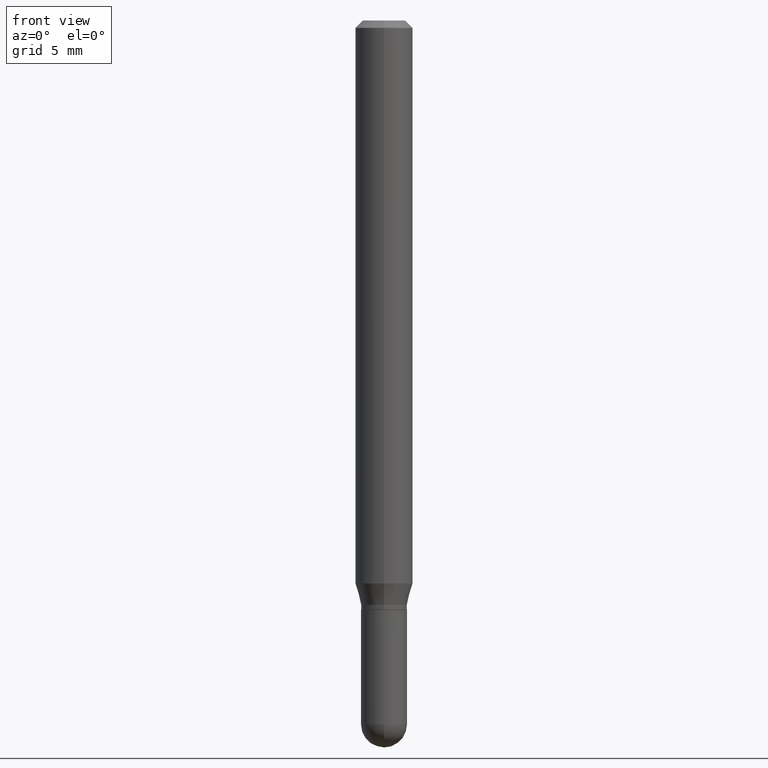
[diagram: clean part render]
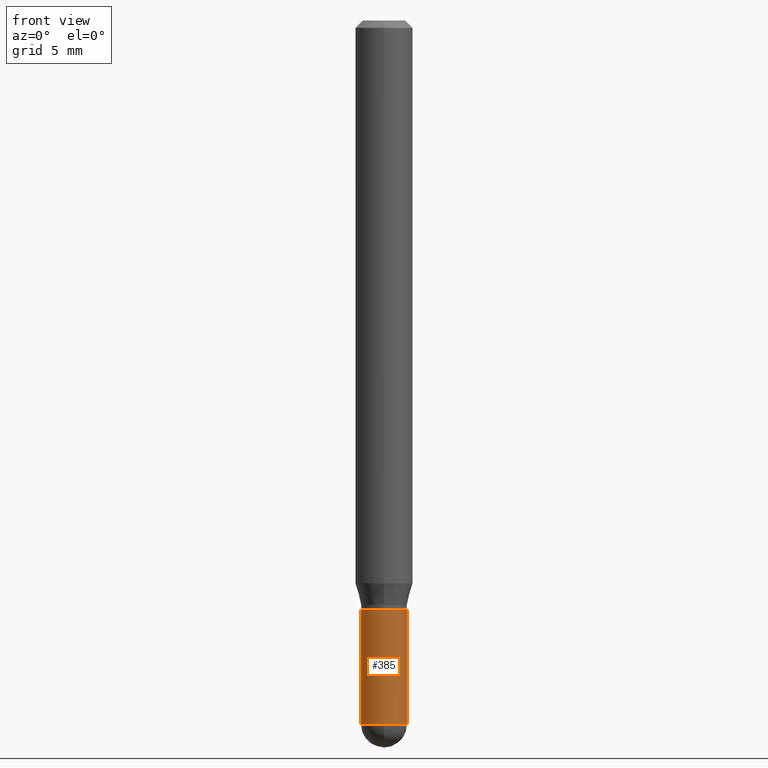
[diagram: same view with one face highlighted and labeled with its STEP entity id]
A machine part, front view. The second image highlights one B-rep face of the part: STEP entity #385.
In plain terms, the highlighted cylindrical surface (edge-blend (fillet) strip) has radius 1.2001 mm, axis along (-0, 0, 1).
Its self-contained STEP definition (entity closure, byte-faithful):
#1 = DIRECTION ( 'NONE',  ( -2.445468806185136597E-29, 3.491481338843145583E-15, 1.000000000000000000 ) ) ;
#10 = LINE ( 'NONE', #432, #486 ) ;
#21 = CARTESIAN_POINT ( 'NONE',  ( -3.299449865206399170E-16, -0.04725000000000495470, -1.448849999999999749 ) ) ;
#24 = ORIENTED_EDGE ( 'NONE', *, *, #510, .T. ) ;
#33 = DIRECTION ( 'NONE',  ( 1.000000000000000000, -6.982962677686267499E-15, 0.000000000000000000 ) ) ;
#40 = EDGE_CURVE ( 'NONE', #165, #397, #299, .T. ) ;
#46 = DIRECTION ( 'NONE',  ( -2.445468806185136877E-29, 3.491481338843145188E-15, 1.000000000000000000 ) ) ;
#82 = CIRCLE ( 'NONE', #507, 0.04724999999999998646 ) ;
#104 = VERTEX_POINT ( 'NONE', #21 ) ;
#105 = CARTESIAN_POINT ( 'NONE',  ( 0.04724999999999998646, -3.299449865206760074E-16, 2.303993526563579130E-30 ) ) ;
#129 = DIRECTION ( 'NONE',  ( -2.445468806185136597E-29, 3.491481338843145583E-15, 1.000000000000000000 ) ) ;
#131 = EDGE_CURVE ( 'NONE', #245, #104, #187, .T. ) ;
#140 = CARTESIAN_POINT ( 'NONE',  ( 0.04724999999999998646, -4.976146491152720682E-15, -1.448849999999999971 ) ) ;
#150 = ORIENTED_EDGE ( 'NONE', *, *, #358, .F. ) ;
#165 = VERTEX_POINT ( 'NONE', #140 ) ;
#172 = CARTESIAN_POINT ( 'NONE',  ( 3.543117479841335070E-29, -5.058632737782891656E-15, -1.448849999999999971 ) ) ;
#187 = CIRCLE ( 'NONE', #317, 0.04724999999999998646 ) ;
#206 = EDGE_LOOP ( 'NONE', ( #150, #496, #24, #344, #287 ) ) ;
#209 = CARTESIAN_POINT ( 'NONE',  ( 0.000000000000000000, 0.000000000000000000, 0.000000000000000000 ) ) ;
#245 = VERTEX_POINT ( 'NONE', #475 ) ;
#249 = CYLINDRICAL_SURFACE ( 'NONE', #335, 0.04724999999999998646 ) ;
#258 = CIRCLE ( 'NONE', #293, 0.04724999999999999339 ) ;
#272 = DIRECTION ( 'NONE',  ( -2.445468806185136597E-29, 3.491481338843145583E-15, 1.000000000000000000 ) ) ;
#283 = EDGE_CURVE ( 'NONE', #389, #397, #258, .T. ) ;
#287 = ORIENTED_EDGE ( 'NONE', *, *, #283, .F. ) ;
#290 = CARTESIAN_POINT ( 'NONE',  ( -0.04724999999999999339, -4.310470061985398025E-15, -1.212599999999999900 ) ) ;
#292 = VECTOR ( 'NONE', #440, 39.37007874015748143 ) ;
#293 = AXIS2_PLACEMENT_3D ( 'NONE', #361, #1, #300 ) ;
#299 = LINE ( 'NONE', #105, #292 ) ;
#300 = DIRECTION ( 'NONE',  ( 1.000000000000000000, -6.982962677686256455E-15, 0.000000000000000000 ) ) ;
#317 = AXIS2_PLACEMENT_3D ( 'NONE', #172, #332, #488 ) ;
#330 = FACE_OUTER_BOUND ( 'NONE', #206, .T. ) ;
#332 = DIRECTION ( 'NONE',  ( -2.445468806185136597E-29, 3.491481338843145583E-15, 1.000000000000000000 ) ) ;
#335 = AXIS2_PLACEMENT_3D ( 'NONE', #209, #129, #439 ) ;
#344 = ORIENTED_EDGE ( 'NONE', *, *, #40, .T. ) ;
#358 = EDGE_CURVE ( 'NONE', #245, #389, #10, .T. ) ;
#361 = CARTESIAN_POINT ( 'NONE',  ( 2.965375474380096235E-29, -4.233770271481197693E-15, -1.212599999999999900 ) ) ;
#385 = ADVANCED_FACE ( 'NONE', ( #330 ), #249, .T. ) ;
#386 = CARTESIAN_POINT ( 'NONE',  ( 3.543117479841335070E-29, -5.058632737782891656E-15, -1.448849999999999971 ) ) ;
#389 = VERTEX_POINT ( 'NONE', #290 ) ;
#397 = VERTEX_POINT ( 'NONE', #408 ) ;
#408 = CARTESIAN_POINT ( 'NONE',  ( 0.04724999999999999339, -4.563715258001873701E-15, -1.212599999999999900 ) ) ;
#432 = CARTESIAN_POINT ( 'NONE',  ( -0.04724999999999998646, 3.357314426466472416E-16, -2.324196830145442465E-30 ) ) ;
#439 = DIRECTION ( 'NONE',  ( 1.000000000000000000, -6.982962677686266711E-15, 4.876176775795935793E-29 ) ) ;
#440 = DIRECTION ( 'NONE',  ( -2.445468806185136877E-29, 3.491481338843145188E-15, 1.000000000000000000 ) ) ;
#475 = CARTESIAN_POINT ( 'NONE',  ( -0.04724999999999998646, -4.310470061985398025E-15, -1.448849999999999971 ) ) ;
#486 = VECTOR ( 'NONE', #46, 39.37007874015748143 ) ;
#488 = DIRECTION ( 'NONE',  ( 1.000000000000000000, -6.982962677686267499E-15, 0.000000000000000000 ) ) ;
#496 = ORIENTED_EDGE ( 'NONE', *, *, #131, .T. ) ;
#507 = AXIS2_PLACEMENT_3D ( 'NONE', #386, #272, #33 ) ;
#510 = EDGE_CURVE ( 'NONE', #104, #165, #82, .T. ) ;